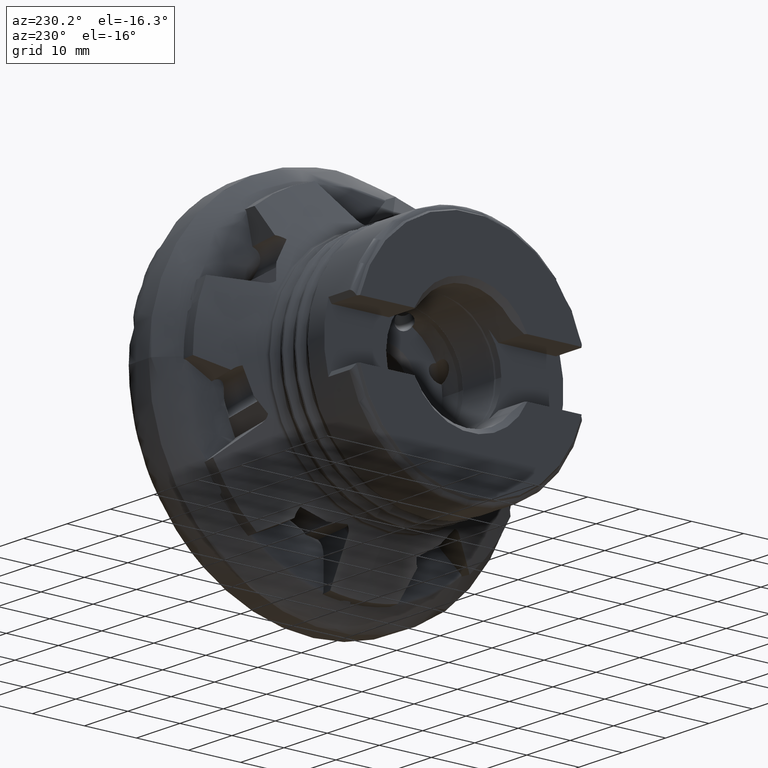
[diagram: clean part render]
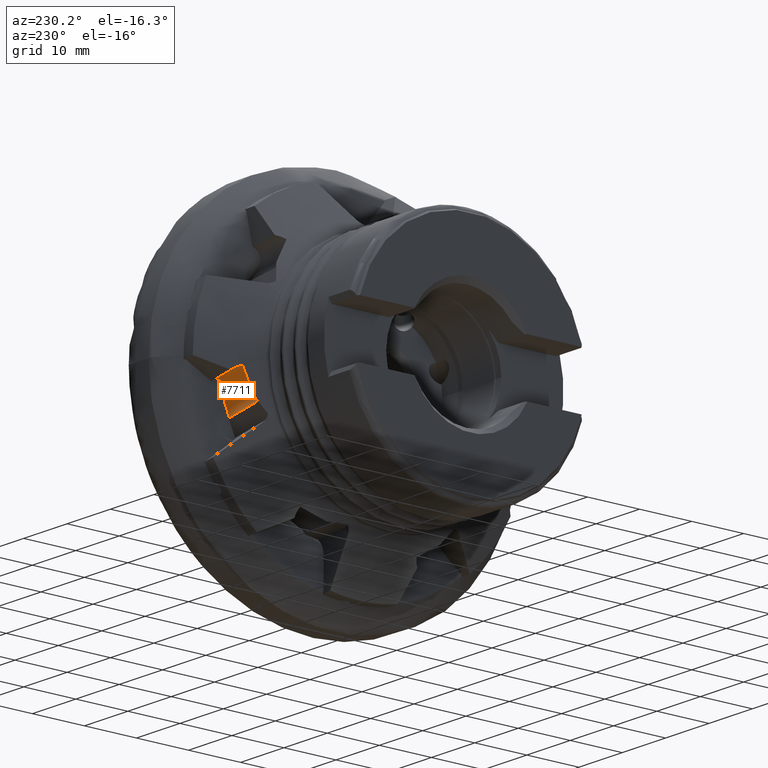
[diagram: same view with one face highlighted and labeled with its STEP entity id]
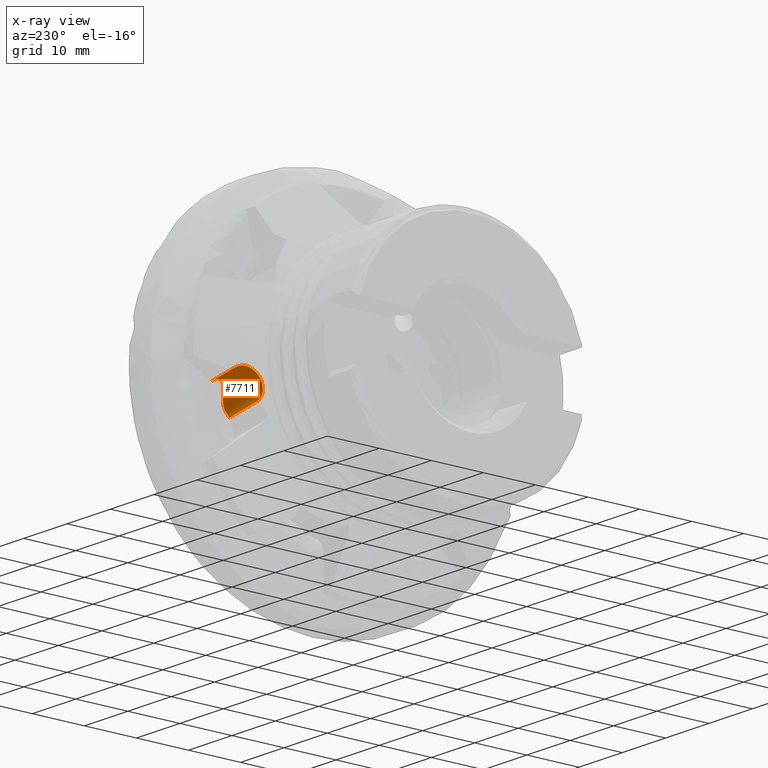
[diagram: x-ray of the same camera — body ghosted, the highlighted face saturated]
A machine part, auxiliary view. The second image highlights one B-rep face of the part: STEP entity #7711.
The next image is the same camera in x-ray: the body ghosted, the highlighted face saturated — about 0% of this face is hidden behind the body in this view.
In plain terms, the highlighted cylindrical surface (edge-blend (fillet) strip) has radius 3 mm, axis along (0.9903, -0.0868, -0.1088).
Its self-contained STEP definition (entity closure, byte-faithful):
#45 = CARTESIAN_POINT ( 'NONE',  ( -10.83673280660453900, 24.03856861058666200, -2.547790075118325300 ) ) ;
#89 = CARTESIAN_POINT ( 'NONE',  ( -8.266707059244856400, 21.89624417005997600, -4.767285661043544600 ) ) ;
#133 = CARTESIAN_POINT ( 'NONE',  ( -10.14996460693367200, 22.39974634202546300, -7.170513838440514900 ) ) ;
#228 = ORIENTED_EDGE ( 'NONE', *, *, #6762, .T. ) ;
#319 = ORIENTED_EDGE ( 'NONE', *, *, #1930, .F. ) ;
#440 = CARTESIAN_POINT ( 'NONE',  ( -16.96202908841900100, 26.95593790323668400, -2.059610708083220700 ) ) ;
#932 = ORIENTED_EDGE ( 'NONE', *, *, #4979, .F. ) ;
#1048 = CARTESIAN_POINT ( 'NONE',  ( -17.58838193559708400, 27.46155414180932300, -2.301067972813759500 ) ) ;
#1053 = CARTESIAN_POINT ( 'NONE',  ( -10.35983283887058600, 23.52424293848979500, -2.808036841430189500 ) ) ;
#1105 = CARTESIAN_POINT ( 'NONE',  ( -8.232082481904489800, 21.79816246610949200, -5.129275356201700800 ) ) ;
#1148 = CARTESIAN_POINT ( 'NONE',  ( -10.67728200236718500, 22.78102442071360300, -7.533694953161903700 ) ) ;
#1464 = CARTESIAN_POINT ( 'NONE',  ( -16.64684298790165300, 27.37905105977070600, -2.404523565425119800 ) ) ;
#1538 = CARTESIAN_POINT ( 'NONE',  ( -18.00590123847728600, 25.60928801590919300, -4.623736229488683200 ) ) ;
#1645 = VERTEX_POINT ( 'NONE', #10445 ) ;
#1793 = AXIS2_PLACEMENT_3D ( 'NONE', #1538, #4547, #5533 ) ;
#1794 = CARTESIAN_POINT ( 'NONE',  ( -11.64048955630471500, 26.94036544948104600, -2.954617921431710300 ) ) ;
#1930 = EDGE_CURVE ( 'NONE', #1645, #12575, #10020, .T. ) ;
#2018 = CARTESIAN_POINT ( 'NONE',  ( -11.63596371533548700, 26.53100576448761000, -2.669243364652977800 ) ) ;
#2068 = CARTESIAN_POINT ( 'NONE',  ( -9.846469045616769800, 23.08502070709796100, -3.120077775268890200 ) ) ;
#2110 = CARTESIAN_POINT ( 'NONE',  ( -8.330259484739791300, 21.75621215546041800, -5.489366685697563100 ) ) ;
#2150 = CARTESIAN_POINT ( 'NONE',  ( -10.98236472993081800, 23.10499359148080200, -7.764022111551748000 ) ) ;
#2191 = EDGE_LOOP ( 'NONE', ( #9973, #12896, #932, #319, #228 ) ) ;
#2548 = VERTEX_POINT ( 'NONE', #11251 ) ;
#2878 = VERTEX_POINT ( 'NONE', #9807 ) ;
#3008 = CARTESIAN_POINT ( 'NONE',  ( -11.60822162920935500, 26.07000123492899500, -2.475196451212144000 ) ) ;
#3052 = CARTESIAN_POINT ( 'NONE',  ( -9.329140224314842900, 22.69601461764329300, -3.481986041596968100 ) ) ;
#3095 = CARTESIAN_POINT ( 'NONE',  ( -8.523562472677609100, 21.76729091613262000, -5.810016688986596700 ) ) ;
#3224 = LINE ( 'NONE', #1048, #11194 ) ;
#3316 = DIRECTION ( 'NONE',  ( 0.9902680687415723600, -0.08677300914164688700, -0.1088099118432685800 ) ) ;
#3909 = FACE_OUTER_BOUND ( 'NONE', #2191, .T. ) ;
#4009 = CARTESIAN_POINT ( 'NONE',  ( -11.56438822421728200, 25.71273725240649100, -2.379911454263709600 ) ) ;
#4057 = CARTESIAN_POINT ( 'NONE',  ( -8.829457577003042300, 22.34304062859869000, -3.910109152895244300 ) ) ;
#4100 = CARTESIAN_POINT ( 'NONE',  ( -8.765871009645977100, 21.81628685179580200, -6.090278615013248900 ) ) ;
#4416 = CARTESIAN_POINT ( 'NONE',  ( -17.46935174061490100, 26.25310293122962000, -1.726305726094013300 ) ) ;
#4547 = DIRECTION ( 'NONE',  ( 0.9902680687415725800, -0.08677300914164691500, -0.1088099118432686000 ) ) ;
#4650 = VECTOR ( 'NONE', #3316, 1000.000000000000100 ) ;
#4979 = EDGE_CURVE ( 'NONE', #12575, #2878, #12632, .T. ) ;
#5024 = CARTESIAN_POINT ( 'NONE',  ( -11.42381950065416900, 25.10626951675337500, -2.321203283156873600 ) ) ;
#5059 = CARTESIAN_POINT ( 'NONE',  ( -8.468781568486445400, 22.07957381507191400, -4.345313390855714000 ) ) ;
#5104 = CARTESIAN_POINT ( 'NONE',  ( -9.216807000358134200, 21.95346440328667700, -6.497777472292794300 ) ) ;
#5256 = CARTESIAN_POINT ( 'NONE',  ( -18.00590123847728600, 25.60928801590919300, -4.623736229488683200 ) ) ;
#5533 = DIRECTION ( 'NONE',  ( -0.1092218849031341800, 0.0000000000000000000, -0.9940173941426812000 ) ) ;
#5974 = CARTESIAN_POINT ( 'NONE',  ( -18.42342054135748000, 23.75702189000906700, -6.946404486163600300 ) ) ;
#6017 = CARTESIAN_POINT ( 'NONE',  ( -11.11037226626776000, 24.43243087041591000, -2.417843504373895900 ) ) ;
#6058 = CARTESIAN_POINT ( 'NONE',  ( -8.305787599379636200, 21.93874236283904000, -4.653617767242900000 ) ) ;
#6105 = CARTESIAN_POINT ( 'NONE',  ( -9.780178689450329100, 22.19590048320828400, -6.915726481844965100 ) ) ;
#6265 = DIRECTION ( 'NONE',  ( 0.1391731009600649400, 0.6174220419667108000, 0.7742227522249761600 ) ) ;
#6388 = VERTEX_POINT ( 'NONE', #1794 ) ;
#6421 = CARTESIAN_POINT ( 'NONE',  ( -17.29699640486101600, 26.49401808790628400, -1.815197999505166600 ) ) ;
#6663 = B_SPLINE_CURVE_WITH_KNOTS ( 'NONE', 3,
 ( #11395, #4416, #6421, #440, #7442, #1464 ),
 .UNSPECIFIED., .F., .F.,
 ( 4, 2, 4 ),
 ( 0.0001943359813418628500, 0.001121846427864932000, 0.002049356874388001200 ),
 .UNSPECIFIED. ) ;
#6762 = EDGE_CURVE ( 'NONE', #1645, #2548, #6663, .T. ) ;
#6838 = B_SPLINE_CURVE_WITH_KNOTS ( 'NONE', 3,
 ( #6999, #8013, #2018, #9004, #3008, #10000, #4009, #11003, #5024, #12011, #6017, #45, #7046, #1053, #8045, #2068, #9041, #3052, #10040, #4057, #11045, #5059, #12058, #6058, #89, #7087, #1105, #8093, #2110, #9083, #3095, #10086, #4100, #11093, #5104, #12091, #6105, #133, #7132, #1148, #8141, #2150 ),
 .UNSPECIFIED., .F., .F.,
 ( 4, 2, 2, 2, 2, 2, 2, 2, 2, 2, 2, 2, 2, 2, 2, 2, 2, 2, 2, 2, 4 ),
 ( 3.878959614448864200E-018, 0.0007451808115350312500, 0.001117771217302540200, 0.001490361623070049100, 0.002235542434605067700, 0.002980723246140086400, 0.003725904057675104600, 0.004471084869210123300, 0.005216265680745142000, 0.005961446492280160700, 0.006706627303815180200, 0.007079217709582686500, 0.007451808115350193700, 0.007824398521117700800, 0.008196988926885208000, 0.008569579332652715200, 0.008942169738420222300, 0.009687350549955241900, 0.01043253136149026000, 0.01117771217302528100, 0.01192289298456029900 ),
 .UNSPECIFIED. ) ;
#6999 = CARTESIAN_POINT ( 'NONE',  ( -11.64048955630471500, 26.94036544948104600, -2.954617921431710300 ) ) ;
#7046 = CARTESIAN_POINT ( 'NONE',  ( -10.68468946899310800, 23.85914663087489600, -2.627700894743368700 ) ) ;
#7087 = CARTESIAN_POINT ( 'NONE',  ( -8.229465925009396400, 21.82609572915919600, -5.003927550933510400 ) ) ;
#7132 = CARTESIAN_POINT ( 'NONE',  ( -10.33175720058782200, 22.51447595400569300, -7.292542414225124500 ) ) ;
#7442 = CARTESIAN_POINT ( 'NONE',  ( -16.79858762507485900, 27.17798102564626100, -2.216898179398324200 ) ) ;
#7711 = ADVANCED_FACE ( 'NONE', ( #3909 ), #11550, .F. ) ;
#8013 = CARTESIAN_POINT ( 'NONE',  ( -11.63810464560307900, 26.74354439232671500, -2.798087073889265600 ) ) ;
#8039 = DIRECTION ( 'NONE',  ( 0.9902680687415723600, -0.08677300914164688700, -0.1088099118432685800 ) ) ;
#8045 = CARTESIAN_POINT ( 'NONE',  ( -10.18953067856402200, 23.37148262266148900, -2.907055302782780800 ) ) ;
#8093 = CARTESIAN_POINT ( 'NONE',  ( -8.282561962426777700, 21.76350023000709700, -5.370765102273020700 ) ) ;
#8141 = CARTESIAN_POINT ( 'NONE',  ( -10.83948311148325600, 22.93218412872942500, -7.651895345444564200 ) ) ;
#9004 = CARTESIAN_POINT ( 'NONE',  ( -11.61726889674490700, 26.18867212542391700, -2.518368694282930900 ) ) ;
#9041 = CARTESIAN_POINT ( 'NONE',  ( -9.673012285771012100, 22.95106835092405000, -3.234391505143451500 ) ) ;
#9083 = CARTESIAN_POINT ( 'NONE',  ( -8.450378840430316200, 21.75827437138858000, -5.707494489871961300 ) ) ;
#9268 = AXIS2_PLACEMENT_3D ( 'NONE', #5256, #12242, #6265 ) ;
#9293 = CARTESIAN_POINT ( 'NONE',  ( -18.42342054135748000, 23.75702189000906000, -6.946404486163615400 ) ) ;
#9807 = CARTESIAN_POINT ( 'NONE',  ( -10.98236472993081800, 23.10499359148080200, -7.764022111551748000 ) ) ;
#9973 = ORIENTED_EDGE ( 'NONE', *, *, #10784, .T. ) ;
#10000 = CARTESIAN_POINT ( 'NONE',  ( -11.58179337543437600, 25.83244834493828500, -2.406189260863365000 ) ) ;
#10020 = CIRCLE ( 'NONE', #9268, 2.999999999999999600 ) ;
#10040 = CARTESIAN_POINT ( 'NONE',  ( -9.158504260378098400, 22.57499681537762400, -3.615046501815072100 ) ) ;
#10086 = CARTESIAN_POINT ( 'NONE',  ( -8.681438720960226600, 21.79636677634664800, -6.001442509947422000 ) ) ;
#10445 = CARTESIAN_POINT ( 'NONE',  ( -17.64705153852185000, 26.00233168431864100, -1.671323052515456300 ) ) ;
#10784 = EDGE_CURVE ( 'NONE', #2548, #6388, #3224, .T. ) ;
#11003 = CARTESIAN_POINT ( 'NONE',  ( -11.49507949247850800, 25.35173252202594400, -2.324898497748625600 ) ) ;
#11045 = CARTESIAN_POINT ( 'NONE',  ( -8.671413839235715000, 22.23280170799997500, -4.070752165135729700 ) ) ;
#11093 = CARTESIAN_POINT ( 'NONE',  ( -9.028492495154870000, 21.88847222426226600, -6.344249919640081000 ) ) ;
#11194 = VECTOR ( 'NONE', #8039, 1000.000000000000100 ) ;
#11251 = CARTESIAN_POINT ( 'NONE',  ( -16.64684298790165300, 27.37905105977070600, -2.404523565425119800 ) ) ;
#11395 = CARTESIAN_POINT ( 'NONE',  ( -17.64705153852185000, 26.00233168431864100, -1.671323052515456300 ) ) ;
#11550 = CYLINDRICAL_SURFACE ( 'NONE', #1793, 3.000000000000000000 ) ;
#12011 = CARTESIAN_POINT ( 'NONE',  ( -11.23246600757745600, 24.64990803140469600, -2.367819986709085900 ) ) ;
#12058 = CARTESIAN_POINT ( 'NONE',  ( -8.406498003590812100, 22.02999603189653000, -4.443749203388779100 ) ) ;
#12091 = CARTESIAN_POINT ( 'NONE',  ( -9.591898961617081600, 22.10701038639636800, -6.783195214760267400 ) ) ;
#12242 = DIRECTION ( 'NONE',  ( 0.9902680687415703600, -0.08677300914165650400, -0.1088099118432809100 ) ) ;
#12575 = VERTEX_POINT ( 'NONE', #5974 ) ;
#12592 = EDGE_CURVE ( 'NONE', #6388, #2878, #6838, .T. ) ;
#12632 = LINE ( 'NONE', #9293, #4650 ) ;
#12896 = ORIENTED_EDGE ( 'NONE', *, *, #12592, .T. ) ;